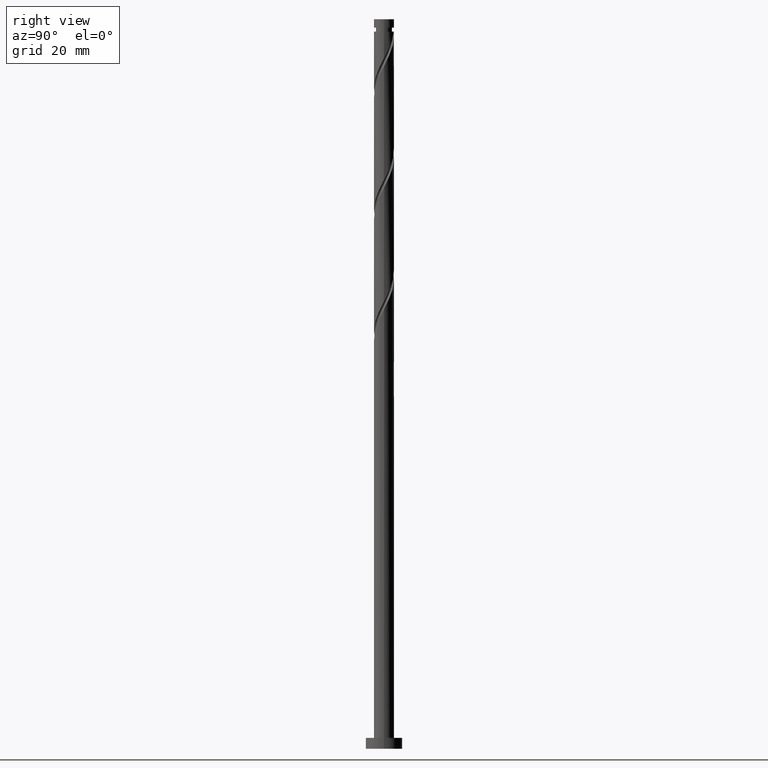
[diagram: clean part render]
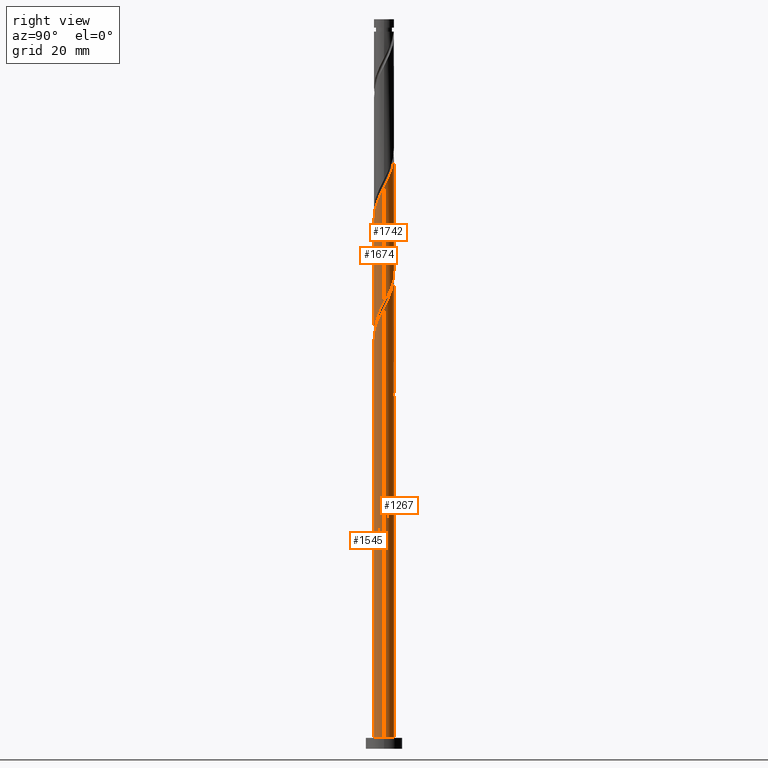
[diagram: same view with one multi-face feature highlighted, each face labeled with its STEP entity id]
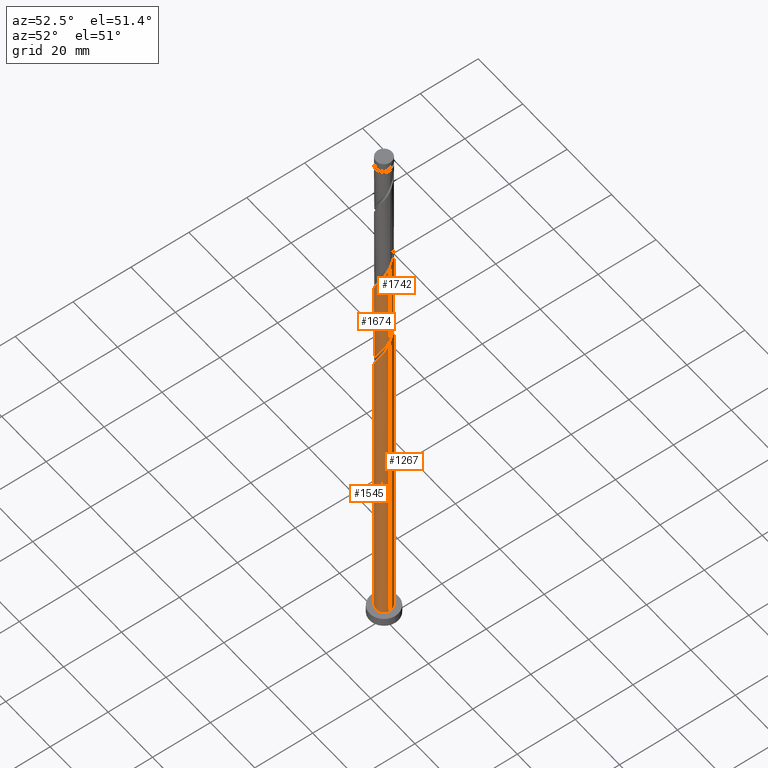
[diagram: same view with one multi-face feature highlighted, each face labeled with its STEP entity id]
A machine part, right view. The highlighted faces form ONE feature: a constant-radius fillet chain: 4 tangent blend faces with common blend radius 2.75 mm. The faces share edges in the B-rep.
A second angle (auxiliary view) of the same feature is appended — it is thin or edge-on in the first view.
Their STEP definitions:
[1] entity #1545 (Cylinder):
#2 = CIRCLE ( 'NONE', #536, 2.750000000000000000 ) ;
#64 = FACE_OUTER_BOUND ( 'NONE', #225, .T. ) ;
#65 = CARTESIAN_POINT ( 'NONE',  ( 1.226113560835244698, -2.461533167750525664, 114.6599680781436774 ) ) ;
#74 = CARTESIAN_POINT ( 'NONE',  ( -0.1689210922673435034, -2.744807035947559370, 111.8821903003659060 ) ) ;
#77 = EDGE_CURVE ( 'NONE', #700, #815, #1121, .T. ) ;
#84 = CARTESIAN_POINT ( 'NONE',  ( 2.092672286414963612, -1.820521580848698751, 116.7433014114770060 ) ) ;
#107 = EDGE_CURVE ( 'NONE', #941, #927, #835, .T. ) ;
#181 = EDGE_CURVE ( 'NONE', #815, #927, #2, .T. ) ;
#199 = DIRECTION ( 'NONE',  ( 0.000000000000000000, 0.000000000000000000, 1.000000000000000000 ) ) ;
#206 = CARTESIAN_POINT ( 'NONE',  ( -0.8735735816606137183, -2.607560008403386309, 110.4933014114770202 ) ) ;
#225 = EDGE_LOOP ( 'NONE', ( #619, #301, #715, #1317 ) ) ;
#301 = ORIENTED_EDGE ( 'NONE', *, *, #537, .F. ) ;
#328 = CYLINDRICAL_SURFACE ( 'NONE', #671, 2.750000000000000000 ) ;
#329 = CARTESIAN_POINT ( 'NONE',  ( 2.744807035947559370, -0.1689210922673450299, 120.2155236336992488 ) ) ;
#447 = CARTESIAN_POINT ( 'NONE',  ( -2.461533167750525664, -1.226113560835245364, 106.3266347448103630 ) ) ;
#459 = DIRECTION ( 'NONE',  ( -0.000000000000000000, -0.000000000000000000, -1.000000000000000000 ) ) ;
#460 = CARTESIAN_POINT ( 'NONE',  ( 0.5472430904086423853, -2.695000000000002949, 113.2710791892547917 ) ) ;
#471 = CARTESIAN_POINT ( 'NONE',  ( 2.292612075483180689, -1.518693475112314895, 117.4377458559214773 ) ) ;
#482 = DIRECTION ( 'NONE',  ( -0.000000000000000000, -0.000000000000000000, -1.000000000000000000 ) ) ;
#536 = AXIS2_PLACEMENT_3D ( 'NONE', #1659, #199, #1411 ) ;
#537 = EDGE_CURVE ( 'NONE', #700, #941, #930, .T. ) ;
#585 = CARTESIAN_POINT ( 'NONE',  ( -1.216865369375929928, -2.492551864551399543, 109.7988569670325916 ) ) ;
#588 = CARTESIAN_POINT ( 'NONE',  ( 2.750000000000000000, 3.367778697655221012E-16, 200.0000000000000000 ) ) ;
#605 = CARTESIAN_POINT ( 'NONE',  ( -1.820521580848698751, -2.092672286414963612, 108.4099680781436632 ) ) ;
#619 = ORIENTED_EDGE ( 'NONE', *, *, #107, .F. ) ;
#645 = CARTESIAN_POINT ( 'NONE',  ( -2.750000000000000000, 0.000000000000000000, 3.000000000000000000 ) ) ;
#668 = CARTESIAN_POINT ( 'NONE',  ( -2.750000000000003553, -2.557097139859011032E-15, 103.8741792007114100 ) ) ;
#671 = AXIS2_PLACEMENT_3D ( 'NONE', #866, #459, #1043 ) ;
#700 = VERTEX_POINT ( 'NONE', #668 ) ;
#715 = ORIENTED_EDGE ( 'NONE', *, *, #77, .T. ) ;
#723 = DIRECTION ( 'NONE',  ( -0.000000000000000000, -0.000000000000000000, -1.000000000000000000 ) ) ;
#731 = CARTESIAN_POINT ( 'NONE',  ( 0.9020465714066742136, -2.622954080360260232, 113.9655236336992488 ) ) ;
#743 = CARTESIAN_POINT ( 'NONE',  ( 2.492551864551398655, -1.216865369375930150, 118.1321903003658917 ) ) ;
#815 = VERTEX_POINT ( 'NONE', #645 ) ;
#835 = LINE ( 'NONE', #588, #1396 ) ;
#866 = CARTESIAN_POINT ( 'NONE',  ( 0.000000000000000000, 0.000000000000000000, 200.0000000000000000 ) ) ;
#877 = CARTESIAN_POINT ( 'NONE',  ( 0.1924396094106093635, -2.767045919639746554, 112.5766347448103346 ) ) ;
#921 = VECTOR ( 'NONE', #482, 1000.000000000000000 ) ;
#927 = VERTEX_POINT ( 'NONE', #1243 ) ;
#930 =( BOUNDED_CURVE ( )  B_SPLINE_CURVE ( 2, ( #1115, #1655, #1632, #1128, #447, #1643, #1665, #605, #1151, #585, #206, #1278, #74, #877, #460, #731, #65, #1269, #1542, #84, #471, #743, #1686, #1138, #329, #1160, #1433 ),
 .UNSPECIFIED., .F., .T. ) 
 B_SPLINE_CURVE_WITH_KNOTS ( ( 3, 2, 2, 2, 2, 2, 2, 2, 2, 2, 2, 2, 2, 3 ),
 ( 0.05453176698144622525, 0.06250000000000000000, 0.07291666666666662966, 0.08333333333333337034, 0.09375000000000000000, 0.1041666666666666297, 0.1145833333333333703, 0.1250000000000000000, 0.1354166666666666297, 0.1458333333333333703, 0.1562500000000000000, 0.1666666666666666297, 0.1770833333333333703, 0.1795317669814464057 ),
 .UNSPECIFIED. ) 
 CURVE ( )  GEOMETRIC_REPRESENTATION_ITEM ( )  RATIONAL_B_SPLINE_CURVE ( ( 0.9062941362546529378, 0.9031415850403570200, 0.9090909090909324863, 0.9013135103398509651, 0.9090909090909324863, 0.9013135103398509651, 0.9090909090909324863, 0.9013135103398509651, 0.9090909090909324863, 0.9013135103398509651, 0.9090909090909324863, 0.9013135103398509651, 0.9090909090909324863, 0.9013135103398509651, 0.9090909090909324863, 0.9013135103398509651, 0.9090909090909324863, 0.9013135103398509651, 0.9090909090909324863, 0.9013135103398509651, 0.9090909090909324863, 0.9013135103398509651, 0.9090909090909324863, 0.9013135103398509651, 0.9090909090909324863, 0.9072628343904260984, 0.9062941362546526047 ) ) 
 REPRESENTATION_ITEM ( '' )  );
#941 = VERTEX_POINT ( 'NONE', #972 ) ;
#972 = CARTESIAN_POINT ( 'NONE',  ( 2.750000000000002665, 7.925505755118572551E-16, 120.5408458673780672 ) ) ;
#1043 = DIRECTION ( 'NONE',  ( -1.000000000000000000, 0.000000000000000000, 0.000000000000000000 ) ) ;
#1115 = CARTESIAN_POINT ( 'NONE',  ( -2.750000000000003553, -2.557097139859010638E-15, 103.8741792007114242 ) ) ;
#1121 = LINE ( 'NONE', #1525, #921 ) ;
#1128 = CARTESIAN_POINT ( 'NONE',  ( -2.622954080360260232, -0.9020465714066743246, 105.6321903003658775 ) ) ;
#1138 = CARTESIAN_POINT ( 'NONE',  ( 2.722568152255373075, -0.5302817939452977303, 119.5210791892547775 ) ) ;
#1151 = CARTESIAN_POINT ( 'NONE',  ( -1.518693475112313784, -2.292612075483181577, 109.1044125225881487 ) ) ;
#1160 = CARTESIAN_POINT ( 'NONE',  ( 2.750000000000003109, -0.08454036705860136502, 120.3776821793499323 ) ) ;
#1243 = CARTESIAN_POINT ( 'NONE',  ( 2.750000000000000000, 3.367778697655221012E-16, 3.000000000000000000 ) ) ;
#1269 = CARTESIAN_POINT ( 'NONE',  ( 1.550180550263815071, -2.300112255140790651, 115.3544125225881487 ) ) ;
#1278 = CARTESIAN_POINT ( 'NONE',  ( -0.5302817939452965090, -2.722568152255373075, 111.1877458559214631 ) ) ;
#1317 = ORIENTED_EDGE ( 'NONE', *, *, #181, .T. ) ;
#1396 = VECTOR ( 'NONE', #723, 1000.000000000000000 ) ;
#1411 = DIRECTION ( 'NONE',  ( 1.000000000000000000, 0.000000000000000000, 0.000000000000000000 ) ) ;
#1433 = CARTESIAN_POINT ( 'NONE',  ( 2.750000000000002665, 7.925505755118572551E-16, 120.5408458673780672 ) ) ;
#1525 = CARTESIAN_POINT ( 'NONE',  ( -2.750000000000000000, 0.000000000000000000, 200.0000000000000000 ) ) ;
#1542 = CARTESIAN_POINT ( 'NONE',  ( 1.821426418339389786, -2.060316917994744479, 116.0488569670326058 ) ) ;
#1545 = ADVANCED_FACE ( 'NONE', ( #64 ), #328, .T. ) ;
#1632 = CARTESIAN_POINT ( 'NONE',  ( -2.695000000000002949, -0.5472430904086424963, 104.9377458559214773 ) ) ;
#1643 = CARTESIAN_POINT ( 'NONE',  ( -2.300112255140790207, -1.550180550263815960, 107.0210791892547633 ) ) ;
#1655 = CARTESIAN_POINT ( 'NONE',  ( -2.750000000000004441, -0.2763853991962810785, 104.4076055699006815 ) ) ;
#1659 = CARTESIAN_POINT ( 'NONE',  ( 0.000000000000000000, 0.000000000000000000, 3.000000000000000000 ) ) ;
#1665 = CARTESIAN_POINT ( 'NONE',  ( -2.060316917994743591, -1.821426418339390008, 107.7155236336992488 ) ) ;
#1686 = CARTESIAN_POINT ( 'NONE',  ( 2.607560008403386753, -0.8735735816606140514, 118.8266347448103488 ) ) ;
[2] entity #1267 (Cylinder):
#25 = AXIS2_PLACEMENT_3D ( 'NONE', #940, #101, #1475 ) ;
#47 = CARTESIAN_POINT ( 'NONE',  ( -2.722568152255373075, 0.5302817939452962870, 102.8544125225881345 ) ) ;
#63 = VECTOR ( 'NONE', #83, 1000.000000000000000 ) ;
#68 = CARTESIAN_POINT ( 'NONE',  ( -1.226113560835245586, 2.461533167750525664, 97.99330141147702022 ) ) ;
#77 = EDGE_CURVE ( 'NONE', #700, #815, #1121, .T. ) ;
#83 = DIRECTION ( 'NONE',  ( -0.000000000000000000, -0.000000000000000000, -1.000000000000000000 ) ) ;
#91 = CARTESIAN_POINT ( 'NONE',  ( 0.1924396094106105570, 2.767045919639743445, 97.29885696703260578 ) ) ;
#101 = DIRECTION ( 'NONE',  ( -0.000000000000000000, -0.000000000000000000, -1.000000000000000000 ) ) ;
#107 = EDGE_CURVE ( 'NONE', #941, #927, #835, .T. ) ;
#109 = CARTESIAN_POINT ( 'NONE',  ( 2.695000000000002949, 0.5472430904086422743, 121.6044125225881203 ) ) ;
#118 = CARTESIAN_POINT ( 'NONE',  ( -2.722568152255373075, 0.5302817939452962870, 136.1877458559214347 ) ) ;
#179 = VERTEX_POINT ( 'NONE', #1133 ) ;
#182 = CARTESIAN_POINT ( 'NONE',  ( -1.821426418339390452, 2.060316917994743591, 99.38219030036592017 ) ) ;
#213 = CARTESIAN_POINT ( 'NONE',  ( -2.750000000000000000, 0.2763853991962862966, 105.4678861419422731 ) ) ;
#242 = CARTESIAN_POINT ( 'NONE',  ( 0.5302817939452980633, 2.722568152255373075, 127.8544125225881061 ) ) ;
#247 = EDGE_CURVE ( 'NONE', #179, #700, #383, .T. ) ;
#254 = CARTESIAN_POINT ( 'NONE',  ( -0.1924396094106075872, 2.767045919639746554, 129.2433014114770344 ) ) ;
#310 = ORIENTED_EDGE ( 'NONE', *, *, #107, .T. ) ;
#315 = AXIS2_PLACEMENT_3D ( 'NONE', #1554, #1297, #899 ) ;
#318 = CARTESIAN_POINT ( 'NONE',  ( -1.820521580848695864, 2.092672286414962279, 101.4655236336992772 ) ) ;
#345 = CARTESIAN_POINT ( 'NONE',  ( -2.750000000000000000, -3.865553278675779500E-15, 106.0013125111315588 ) ) ;
#383 =( BOUNDED_CURVE ( )  B_SPLINE_CURVE ( 2, ( #734, #1273, #68, #599, #182, #712, #1155, #881, #702, #47, #1244, #451, #1001 ),
 .UNSPECIFIED., .F., .T. ) 
 B_SPLINE_CURVE_WITH_KNOTS ( ( 3, 2, 2, 2, 2, 2, 3 ),
 ( 0.000000000000000000, 0.01041666666666662966, 0.02083333333333337034, 0.03125000000000000000, 0.04166666666666662966, 0.05208333333333337034, 0.05453176698144622525 ),
 .UNSPECIFIED. ) 
 CURVE ( )  GEOMETRIC_REPRESENTATION_ITEM ( )  RATIONAL_B_SPLINE_CURVE ( ( 0.9090909090909324863, 0.9013135103398509651, 0.9090909090909324863, 0.9013135103398509651, 0.9090909090909324863, 0.9013135103398509651, 0.9090909090909324863, 0.9013135103398509651, 0.9090909090909324863, 0.9013135103398509651, 0.9090909090909324863, 0.9072628343904263204, 0.9062941362546529378 ) ) 
 REPRESENTATION_ITEM ( '' )  );
#440 =( BOUNDED_CURVE ( )  B_SPLINE_CURVE ( 2, ( #345, #213, #1560, #584, #1024, #1541, #604, #318, #1277, #1424, #1673, #751, #1150, #91, #497 ),
 .UNSPECIFIED., .F., .T. ) 
 B_SPLINE_CURVE_WITH_KNOTS ( ( 3, 2, 2, 2, 2, 2, 2, 3 ),
 ( 0.9295317669814463502, 0.9375000000000000000, 0.9479166666666666297, 0.9583333333333333703, 0.9687500000000000000, 0.9791666666666666297, 0.9895833333333333703, 1.000000000000000000 ),
 .UNSPECIFIED. ) 
 CURVE ( )  GEOMETRIC_REPRESENTATION_ITEM ( )  RATIONAL_B_SPLINE_CURVE ( ( 0.9062941362546472757, 0.9031415850403515799, 0.9090909090909271573, 0.9013135103398454140, 0.9090909090909271573, 0.9013135103398454140, 0.9090909090909271573, 0.9013135103398454140, 0.9090909090909271573, 0.9013135103398454140, 0.9090909090909271573, 0.9013135103398454140, 0.9090909090909271573, 0.9013135103398454140, 0.9090909090909271573 ) ) 
 REPRESENTATION_ITEM ( '' )  );
#449 = ORIENTED_EDGE ( 'NONE', *, *, #1458, .F. ) ;
#451 = CARTESIAN_POINT ( 'NONE',  ( -2.750000000000003109, 0.08454036705860486223, 103.7110155126832325 ) ) ;
#453 = VERTEX_POINT ( 'NONE', #1232 ) ;
#482 = DIRECTION ( 'NONE',  ( -0.000000000000000000, -0.000000000000000000, -1.000000000000000000 ) ) ;
#486 = AXIS2_PLACEMENT_3D ( 'NONE', #567, #1223, #1373 ) ;
#497 = CARTESIAN_POINT ( 'NONE',  ( 0.5472430904086429404, 2.694999999999998952, 96.60441252258813449 ) ) ;
#514 = CARTESIAN_POINT ( 'NONE',  ( 0.5472430904086429404, 2.694999999999998952, 96.60441252258813449 ) ) ;
#515 = EDGE_CURVE ( 'NONE', #927, #815, #735, .T. ) ;
#520 = CYLINDRICAL_SURFACE ( 'NONE', #25, 2.750000000000000000 ) ;
#567 = CARTESIAN_POINT ( 'NONE',  ( 0.000000000000000000, 0.000000000000000000, 3.000000000000000000 ) ) ;
#584 = CARTESIAN_POINT ( 'NONE',  ( -2.622954080360256679, 0.9020465714066745466, 104.2433014114770344 ) ) ;
#588 = CARTESIAN_POINT ( 'NONE',  ( 2.750000000000000000, 3.367778697655221012E-16, 200.0000000000000000 ) ) ;
#599 = CARTESIAN_POINT ( 'NONE',  ( -1.550180550263816848, 2.300112255140789763, 98.68774585592146309 ) ) ;
#604 = CARTESIAN_POINT ( 'NONE',  ( -2.060316917994740482, 1.821426418339388231, 102.1599680781436916 ) ) ;
#637 = CARTESIAN_POINT ( 'NONE',  ( 2.622954080360260232, 0.9020465714066742136, 122.2988569670325631 ) ) ;
#638 = ORIENTED_EDGE ( 'NONE', *, *, #1190, .F. ) ;
#643 = CARTESIAN_POINT ( 'NONE',  ( 1.518693475112314006, 2.292612075483181133, 125.7710791892548201 ) ) ;
#645 = CARTESIAN_POINT ( 'NONE',  ( -2.750000000000000000, 0.000000000000000000, 3.000000000000000000 ) ) ;
#648 = CARTESIAN_POINT ( 'NONE',  ( -0.9020465714066747687, 2.622954080360259788, 130.6321903003659202 ) ) ;
#658 = CARTESIAN_POINT ( 'NONE',  ( -2.092672286414964056, 1.820521580848698528, 133.4099680781436916 ) ) ;
#668 = CARTESIAN_POINT ( 'NONE',  ( -2.750000000000003553, -2.557097139859011032E-15, 103.8741792007114100 ) ) ;
#700 = VERTEX_POINT ( 'NONE', #668 ) ;
#702 = CARTESIAN_POINT ( 'NONE',  ( -2.607560008403386753, 0.8735735816606131632, 102.1599680781437058 ) ) ;
#712 = CARTESIAN_POINT ( 'NONE',  ( -2.092672286414964056, 1.820521580848698528, 100.0766347448103630 ) ) ;
#723 = DIRECTION ( 'NONE',  ( -0.000000000000000000, -0.000000000000000000, -1.000000000000000000 ) ) ;
#734 = CARTESIAN_POINT ( 'NONE',  ( -0.5472430904086420522, 2.695000000000002949, 96.60441252258813449 ) ) ;
#735 = CIRCLE ( 'NONE', #486, 2.750000000000000000 ) ;
#751 = CARTESIAN_POINT ( 'NONE',  ( -0.5302817939452950657, 2.722568152255369522, 98.68774585592149151 ) ) ;
#766 = CIRCLE ( 'NONE', #315, 2.750000000000000000 ) ;
#789 = CARTESIAN_POINT ( 'NONE',  ( -1.821426418339390452, 2.060316917994743591, 132.7155236336992630 ) ) ;
#815 = VERTEX_POINT ( 'NONE', #645 ) ;
#833 = ORIENTED_EDGE ( 'NONE', *, *, #77, .F. ) ;
#835 = LINE ( 'NONE', #588, #1396 ) ;
#872 = ORIENTED_EDGE ( 'NONE', *, *, #247, .F. ) ;
#881 = CARTESIAN_POINT ( 'NONE',  ( -2.492551864551399543, 1.216865369375929040, 101.4655236336992203 ) ) ;
#899 = DIRECTION ( 'NONE',  ( 0.000000000000000000, 1.000000000000000000, -4.037174635000569123E-14 ) ) ;
#900 = ORIENTED_EDGE ( 'NONE', *, *, #1537, .F. ) ;
#909 = ORIENTED_EDGE ( 'NONE', *, *, #515, .T. ) ;
#918 = CARTESIAN_POINT ( 'NONE',  ( 2.750000000000003109, 0.2763853991962846313, 121.0742722365673387 ) ) ;
#921 = VECTOR ( 'NONE', #482, 1000.000000000000000 ) ;
#926 = CARTESIAN_POINT ( 'NONE',  ( -2.607560008403386753, 0.8735735816606131632, 135.4933014114770060 ) ) ;
#927 = VERTEX_POINT ( 'NONE', #1243 ) ;
#940 = CARTESIAN_POINT ( 'NONE',  ( 0.000000000000000000, 0.000000000000000000, 200.0000000000000000 ) ) ;
#941 = VERTEX_POINT ( 'NONE', #972 ) ;
#949 = CARTESIAN_POINT ( 'NONE',  ( -2.750000000000003109, 0.08454036705860050460, 137.0443488460165611 ) ) ;
#972 = CARTESIAN_POINT ( 'NONE',  ( 2.750000000000002665, 7.925505755118572551E-16, 120.5408458673780672 ) ) ;
#1001 = CARTESIAN_POINT ( 'NONE',  ( -2.750000000000003553, -2.557097139859010638E-15, 103.8741792007114242 ) ) ;
#1016 = LINE ( 'NONE', #1295, #63 ) ;
#1024 = CARTESIAN_POINT ( 'NONE',  ( -2.461533167750520779, 1.226113560835244920, 103.5488569670325916 ) ) ;
#1044 = EDGE_CURVE ( 'NONE', #179, #1131, #766, .T. ) ;
#1055 = CARTESIAN_POINT ( 'NONE',  ( 2.300112255140790651, 1.550180550263815071, 123.6877458559214773 ) ) ;
#1062 = CARTESIAN_POINT ( 'NONE',  ( 1.820521580848699639, 2.092672286414961835, 125.0766347448103488 ) ) ;
#1072 = CARTESIAN_POINT ( 'NONE',  ( -2.750000000000003553, -2.557097139859011032E-15, 137.2075125340447244 ) ) ;
#1078 = CARTESIAN_POINT ( 'NONE',  ( -2.750000000000000000, -3.865553278675779500E-15, 106.0013125111315588 ) ) ;
#1121 = LINE ( 'NONE', #1525, #921 ) ;
#1131 = VERTEX_POINT ( 'NONE', #514 ) ;
#1133 = CARTESIAN_POINT ( 'NONE',  ( -0.5472430904086420522, 2.695000000000002949, 96.60441252258813449 ) ) ;
#1150 = CARTESIAN_POINT ( 'NONE',  ( -0.1689210922673422266, 2.744807035947555818, 97.99330141147700601 ) ) ;
#1155 = CARTESIAN_POINT ( 'NONE',  ( -2.292612075483181577, 1.518693475112313784, 100.7710791892548059 ) ) ;
#1189 = CARTESIAN_POINT ( 'NONE',  ( -1.226113560835245586, 2.461533167750525664, 131.3266347448103488 ) ) ;
#1190 = EDGE_CURVE ( 'NONE', #941, #453, #1472, .T. ) ;
#1195 = CARTESIAN_POINT ( 'NONE',  ( 2.060316917994744923, 1.821426418339388897, 124.3821903003659202 ) ) ;
#1199 = CARTESIAN_POINT ( 'NONE',  ( -2.744807035947559370, 0.1689210922673433646, 136.8821903003658917 ) ) ;
#1205 = CARTESIAN_POINT ( 'NONE',  ( 1.216865369375930372, 2.492551864551399099, 126.4655236336992346 ) ) ;
#1223 = DIRECTION ( 'NONE',  ( 0.000000000000000000, 0.000000000000000000, 1.000000000000000000 ) ) ;
#1232 = CARTESIAN_POINT ( 'NONE',  ( -2.750000000000003553, -2.557097139859011032E-15, 137.2075125340447244 ) ) ;
#1243 = CARTESIAN_POINT ( 'NONE',  ( 2.750000000000000000, 3.367778697655221012E-16, 3.000000000000000000 ) ) ;
#1244 = CARTESIAN_POINT ( 'NONE',  ( -2.744807035947559370, 0.1689210922673433646, 103.5488569670325774 ) ) ;
#1267 = ADVANCED_FACE ( 'NONE', ( #1307 ), #520, .T. ) ;
#1273 = CARTESIAN_POINT ( 'NONE',  ( -0.9020465714066747687, 2.622954080360259788, 97.29885696703257736 ) ) ;
#1277 = CARTESIAN_POINT ( 'NONE',  ( -1.518693475112311564, 2.292612075483178469, 100.7710791892547917 ) ) ;
#1295 = CARTESIAN_POINT ( 'NONE',  ( -2.750000000000000000, 0.000000000000000000, 200.0000000000000000 ) ) ;
#1297 = DIRECTION ( 'NONE',  ( -1.120541058552573065E-29, -3.784851220313033947E-14, -1.000000000000000000 ) ) ;
#1307 = FACE_OUTER_BOUND ( 'NONE', #1584, .T. ) ;
#1309 = VERTEX_POINT ( 'NONE', #1078 ) ;
#1316 = CARTESIAN_POINT ( 'NONE',  ( 2.750000000000002665, 7.925505755118572551E-16, 120.5408458673780672 ) ) ;
#1324 = CARTESIAN_POINT ( 'NONE',  ( -2.492551864551399543, 1.216865369375929040, 134.7988569670325774 ) ) ;
#1331 = CARTESIAN_POINT ( 'NONE',  ( 0.8735735816606140514, 2.607560008403386309, 127.1599680781436916 ) ) ;
#1373 = DIRECTION ( 'NONE',  ( 1.000000000000000000, 0.000000000000000000, 0.000000000000000000 ) ) ;
#1396 = VECTOR ( 'NONE', #723, 1000.000000000000000 ) ;
#1424 = CARTESIAN_POINT ( 'NONE',  ( -1.216865369375927486, 2.492551864551397323, 100.0766347448104057 ) ) ;
#1458 = EDGE_CURVE ( 'NONE', #453, #1309, #1016, .T. ) ;
#1467 = CARTESIAN_POINT ( 'NONE',  ( 0.1689210922673451132, 2.744807035947559370, 128.5488569670325774 ) ) ;
#1472 =( BOUNDED_CURVE ( )  B_SPLINE_CURVE ( 2, ( #1316, #918, #109, #637, #1604, #1055, #1195, #1062, #643, #1205, #1331, #242, #1467, #254, #1733, #648, #1189, #1597, #789, #658, #1616, #1324, #926, #118, #1199, #949, #1072 ),
 .UNSPECIFIED., .F., .T. ) 
 B_SPLINE_CURVE_WITH_KNOTS ( ( 3, 2, 2, 2, 2, 2, 2, 2, 2, 2, 2, 2, 2, 3 ),
 ( 0.1795317669814463779, 0.1875000000000000000, 0.1979166666666666297, 0.2083333333333333703, 0.2187500000000000000, 0.2291666666666666297, 0.2395833333333333703, 0.2500000000000000000, 0.2604166666666666297, 0.2708333333333333703, 0.2812500000000000000, 0.2916666666666666297, 0.3020833333333333703, 0.3045317669814463502 ),
 .UNSPECIFIED. ) 
 CURVE ( )  GEOMETRIC_REPRESENTATION_ITEM ( )  RATIONAL_B_SPLINE_CURVE ( ( 0.9062941362546526047, 0.9031415850403571310, 0.9090909090909324863, 0.9013135103398509651, 0.9090909090909324863, 0.9013135103398509651, 0.9090909090909324863, 0.9013135103398509651, 0.9090909090909324863, 0.9013135103398509651, 0.9090909090909324863, 0.9013135103398509651, 0.9090909090909324863, 0.9013135103398509651, 0.9090909090909324863, 0.9013135103398509651, 0.9090909090909324863, 0.9013135103398509651, 0.9090909090909324863, 0.9013135103398509651, 0.9090909090909324863, 0.9013135103398509651, 0.9090909090909324863, 0.9013135103398509651, 0.9090909090909324863, 0.9072628343904262094, 0.9062941362546528268 ) ) 
 REPRESENTATION_ITEM ( '' )  );
#1475 = DIRECTION ( 'NONE',  ( -1.000000000000000000, 0.000000000000000000, 0.000000000000000000 ) ) ;
#1514 = ORIENTED_EDGE ( 'NONE', *, *, #1044, .T. ) ;
#1525 = CARTESIAN_POINT ( 'NONE',  ( -2.750000000000000000, 0.000000000000000000, 200.0000000000000000 ) ) ;
#1537 = EDGE_CURVE ( 'NONE', #1309, #1131, #440, .T. ) ;
#1541 = CARTESIAN_POINT ( 'NONE',  ( -2.300112255140786655, 1.550180550263815737, 102.8544125225881629 ) ) ;
#1554 = CARTESIAN_POINT ( 'NONE',  ( 0.000000000000000000, 0.000000000000000000, 96.60441252258824818 ) ) ;
#1560 = CARTESIAN_POINT ( 'NONE',  ( -2.694999999999998952, 0.5472430904086424963, 104.9377458559214915 ) ) ;
#1584 = EDGE_LOOP ( 'NONE', ( #638, #310, #909, #833, #872, #1514, #900, #449 ) ) ;
#1597 = CARTESIAN_POINT ( 'NONE',  ( -1.550180550263816848, 2.300112255140789763, 132.0210791892548059 ) ) ;
#1604 = CARTESIAN_POINT ( 'NONE',  ( 2.461533167750525664, 1.226113560835244698, 122.9933014114770344 ) ) ;
#1616 = CARTESIAN_POINT ( 'NONE',  ( -2.292612075483181577, 1.518693475112313784, 134.1044125225881487 ) ) ;
#1673 = CARTESIAN_POINT ( 'NONE',  ( -0.8735735816606108317, 2.607560008403383645, 99.38219030036590596 ) ) ;
#1733 = CARTESIAN_POINT ( 'NONE',  ( -0.5472430904086421632, 2.695000000000002949, 129.9377458559214915 ) ) ;
[3] entity #1674 (Cylinder):
#8 = CARTESIAN_POINT ( 'NONE',  ( 0.1689210922673410054, -2.744807035947555818, 114.6599680781436916 ) ) ;
#13 = CARTESIAN_POINT ( 'NONE',  ( -2.622954080360260232, -0.9020465714066743246, 138.9655236336992346 ) ) ;
#18 = CARTESIAN_POINT ( 'NONE',  ( -2.722568152255370855, -0.5302817939452945106, 107.0210791892548059 ) ) ;
#22 = CARTESIAN_POINT ( 'NONE',  ( -2.461533167750525664, -1.226113560835245364, 139.6599680781437485 ) ) ;
#41 = CARTESIAN_POINT ( 'NONE',  ( -0.1924396094106114175, -2.767045919639743445, 113.9655236336992914 ) ) ;
#63 = VECTOR ( 'NONE', #83, 1000.000000000000000 ) ;
#79 = CARTESIAN_POINT ( 'NONE',  ( 2.750000000000002665, 7.925505755118572551E-16, 153.8741792007113816 ) ) ;
#83 = DIRECTION ( 'NONE',  ( -0.000000000000000000, -0.000000000000000000, -1.000000000000000000 ) ) ;
#86 = CARTESIAN_POINT ( 'NONE',  ( 1.226113560835244698, -2.461533167750525664, 147.9933014114770060 ) ) ;
#94 = CARTESIAN_POINT ( 'NONE',  ( 2.722568152255373075, -0.5302817939452977303, 152.8544125225881203 ) ) ;
#142 = DIRECTION ( 'NONE',  ( -1.000000000000000000, 0.000000000000000000, 0.000000000000000000 ) ) ;
#148 = ORIENTED_EDGE ( 'NONE', *, *, #608, .F. ) ;
#149 = CARTESIAN_POINT ( 'NONE',  ( -2.695000000000002949, -0.5472430904086424963, 138.2710791892547775 ) ) ;
#162 = CARTESIAN_POINT ( 'NONE',  ( 0.5302817939452934004, -2.722568152255370855, 115.3544125225881487 ) ) ;
#233 = CARTESIAN_POINT ( 'NONE',  ( 0.5472430904086423853, -2.695000000000002949, 146.6044125225881487 ) ) ;
#243 = ORIENTED_EDGE ( 'NONE', *, *, #1010, .F. ) ;
#262 =( BOUNDED_CURVE ( )  B_SPLINE_CURVE ( 2, ( #960, #280, #149, #13, #22, #562, #430, #980, #1027, #1289, #1410, #1428, #880, #1715, #233, #1418, #86, #331, #1018, #339, #1154, #1047, #464, #94, #907, #500, #1688 ),
 .UNSPECIFIED., .F., .T. ) 
 B_SPLINE_CURVE_WITH_KNOTS ( ( 3, 2, 2, 2, 2, 2, 2, 2, 2, 2, 2, 2, 2, 3 ),
 ( 0.3045317669814463502, 0.3125000000000000000, 0.3229166666666666297, 0.3333333333333333703, 0.3437500000000000000, 0.3541666666666666297, 0.3645833333333333703, 0.3750000000000000000, 0.3854166666666666297, 0.3958333333333333703, 0.4062500000000000000, 0.4166666666666666297, 0.4270833333333333703, 0.4295317669814465167 ),
 .UNSPECIFIED. ) 
 CURVE ( )  GEOMETRIC_REPRESENTATION_ITEM ( )  RATIONAL_B_SPLINE_CURVE ( ( 0.9062941362546528268, 0.9031415850403572421, 0.9090909090909324863, 0.9013135103398509651, 0.9090909090909324863, 0.9013135103398509651, 0.9090909090909324863, 0.9013135103398509651, 0.9090909090909324863, 0.9013135103398509651, 0.9090909090909324863, 0.9013135103398509651, 0.9090909090909324863, 0.9013135103398509651, 0.9090909090909324863, 0.9013135103398509651, 0.9090909090909324863, 0.9013135103398509651, 0.9090909090909324863, 0.9013135103398509651, 0.9090909090909324863, 0.9013135103398509651, 0.9090909090909324863, 0.9013135103398509651, 0.9090909090909324863, 0.9072628343904260984, 0.9062941362546527158 ) ) 
 REPRESENTATION_ITEM ( '' )  );
#280 = CARTESIAN_POINT ( 'NONE',  ( -2.750000000000003109, -0.2763853991962853529, 137.7409389032339959 ) ) ;
#287 = CARTESIAN_POINT ( 'NONE',  ( -2.750000000000000888, -0.08454036705859917233, 106.1644761991596937 ) ) ;
#304 = CYLINDRICAL_SURFACE ( 'NONE', #788, 2.750000000000000000 ) ;
#306 = CARTESIAN_POINT ( 'NONE',  ( 1.518693475112310010, -2.292612075483179357, 117.4377458559214773 ) ) ;
#324 = VERTEX_POINT ( 'NONE', #79 ) ;
#331 = CARTESIAN_POINT ( 'NONE',  ( 1.550180550263815071, -2.300112255140790651, 148.6877458559215199 ) ) ;
#339 = CARTESIAN_POINT ( 'NONE',  ( 2.092672286414963612, -1.820521580848698751, 150.0766347448103204 ) ) ;
#386 =( BOUNDED_CURVE ( )  B_SPLINE_CURVE ( 2, ( #549, #1664, #957, #1093, #811, #1249, #1222, #566, #306, #1622, #829, #162, #8, #41, #1490, #408, #1511, #446, #1231, #1386, #995, #1642, #966, #18, #1501, #287, #708 ),
 .UNSPECIFIED., .F., .T. ) 
 B_SPLINE_CURVE_WITH_KNOTS ( ( 3, 2, 2, 2, 2, 2, 2, 2, 2, 2, 2, 2, 2, 3 ),
 ( 0.8045317669814462391, 0.8125000000000000000, 0.8229166666666666297, 0.8333333333333333703, 0.8437500000000000000, 0.8541666666666666297, 0.8645833333333333703, 0.8750000000000000000, 0.8854166666666666297, 0.8958333333333333703, 0.9062500000000000000, 0.9166666666666666297, 0.9270833333333333703, 0.9295317669814463502 ),
 .UNSPECIFIED. ) 
 CURVE ( )  GEOMETRIC_REPRESENTATION_ITEM ( )  RATIONAL_B_SPLINE_CURVE ( ( 0.9062941362546474977, 0.9031415850403515799, 0.9090909090909271573, 0.9013135103398454140, 0.9090909090909271573, 0.9013135103398454140, 0.9090909090909271573, 0.9013135103398454140, 0.9090909090909271573, 0.9013135103398454140, 0.9090909090909271573, 0.9013135103398454140, 0.9090909090909271573, 0.9013135103398454140, 0.9090909090909271573, 0.9013135103398454140, 0.9090909090909271573, 0.9013135103398454140, 0.9090909090909271573, 0.9013135103398454140, 0.9090909090909271573, 0.9013135103398454140, 0.9090909090909271573, 0.9013135103398454140, 0.9090909090909271573, 0.9072628343904207693, 0.9062941362546472757 ) ) 
 REPRESENTATION_ITEM ( '' )  );
#408 = CARTESIAN_POINT ( 'NONE',  ( -0.9020465714066752128, -2.622954080360256679, 112.5766347448103915 ) ) ;
#430 = CARTESIAN_POINT ( 'NONE',  ( -2.060316917994743591, -1.821426418339390008, 141.0488569670326058 ) ) ;
#446 = CARTESIAN_POINT ( 'NONE',  ( -1.550180550263815737, -2.300112255140786655, 111.1877458559214915 ) ) ;
#453 = VERTEX_POINT ( 'NONE', #1232 ) ;
#464 = CARTESIAN_POINT ( 'NONE',  ( 2.607560008403386753, -0.8735735816606140514, 152.1599680781436916 ) ) ;
#488 = DIRECTION ( 'NONE',  ( -0.000000000000000000, -0.000000000000000000, -1.000000000000000000 ) ) ;
#500 = CARTESIAN_POINT ( 'NONE',  ( 2.750000000000003109, -0.08454036705859657719, 153.7110155126832467 ) ) ;
#549 = CARTESIAN_POINT ( 'NONE',  ( 2.750000000000000000, 3.162725409825637737E-15, 122.6679791777982160 ) ) ;
#555 = FACE_OUTER_BOUND ( 'NONE', #660, .T. ) ;
#562 = CARTESIAN_POINT ( 'NONE',  ( -2.300112255140790207, -1.550180550263815960, 140.3544125225880919 ) ) ;
#566 = CARTESIAN_POINT ( 'NONE',  ( 1.820521580848694754, -2.092672286414962723, 118.1321903003659344 ) ) ;
#608 = EDGE_CURVE ( 'NONE', #324, #989, #1168, .T. ) ;
#660 = EDGE_LOOP ( 'NONE', ( #148, #243, #1135, #1657 ) ) ;
#708 = CARTESIAN_POINT ( 'NONE',  ( -2.750000000000000000, -3.865553278675779500E-15, 106.0013125111315588 ) ) ;
#788 = AXIS2_PLACEMENT_3D ( 'NONE', #974, #1237, #142 ) ;
#811 = CARTESIAN_POINT ( 'NONE',  ( 2.461533167750520334, -1.226113560835246030, 120.2155236336992488 ) ) ;
#829 = CARTESIAN_POINT ( 'NONE',  ( 0.8735735816606100546, -2.607560008403383645, 116.0488569670325774 ) ) ;
#880 = CARTESIAN_POINT ( 'NONE',  ( -0.1689210922673435034, -2.744807035947559370, 145.2155236336992061 ) ) ;
#907 = CARTESIAN_POINT ( 'NONE',  ( 2.744807035947559370, -0.1689210922673450299, 153.5488569670325774 ) ) ;
#957 = CARTESIAN_POINT ( 'NONE',  ( 2.694999999999998952, -0.5472430904086427184, 121.6044125225881345 ) ) ;
#960 = CARTESIAN_POINT ( 'NONE',  ( -2.750000000000003553, -2.557097139859011032E-15, 137.2075125340447244 ) ) ;
#966 = CARTESIAN_POINT ( 'NONE',  ( -2.607560008403383645, -0.8735735816606104986, 107.7155236336992346 ) ) ;
#974 = CARTESIAN_POINT ( 'NONE',  ( 0.000000000000000000, 0.000000000000000000, 200.0000000000000000 ) ) ;
#980 = CARTESIAN_POINT ( 'NONE',  ( -1.820521580848698751, -2.092672286414963612, 141.7433014114770344 ) ) ;
#989 = VERTEX_POINT ( 'NONE', #1253 ) ;
#995 = CARTESIAN_POINT ( 'NONE',  ( -2.292612075483178469, -1.518693475112311342, 109.1044125225881487 ) ) ;
#1010 = EDGE_CURVE ( 'NONE', #453, #324, #262, .T. ) ;
#1016 = LINE ( 'NONE', #1295, #63 ) ;
#1018 = CARTESIAN_POINT ( 'NONE',  ( 1.821426418339389786, -2.060316917994744479, 149.3821903003659486 ) ) ;
#1027 = CARTESIAN_POINT ( 'NONE',  ( -1.518693475112313784, -2.292612075483181577, 142.4377458559214915 ) ) ;
#1047 = CARTESIAN_POINT ( 'NONE',  ( 2.492551864551398655, -1.216865369375930150, 151.4655236336992346 ) ) ;
#1078 = CARTESIAN_POINT ( 'NONE',  ( -2.750000000000000000, -3.865553278675779500E-15, 106.0013125111315588 ) ) ;
#1093 = CARTESIAN_POINT ( 'NONE',  ( 2.622954080360256235, -0.9020465714066764340, 120.9099680781437058 ) ) ;
#1135 = ORIENTED_EDGE ( 'NONE', *, *, #1458, .T. ) ;
#1154 = CARTESIAN_POINT ( 'NONE',  ( 2.292612075483180689, -1.518693475112314895, 150.7710791892548059 ) ) ;
#1168 = LINE ( 'NONE', #1704, #1705 ) ;
#1222 = CARTESIAN_POINT ( 'NONE',  ( 2.060316917994739594, -1.821426418339389119, 118.8266347448103488 ) ) ;
#1231 = CARTESIAN_POINT ( 'NONE',  ( -1.821426418339388675, -2.060316917994740038, 110.4933014114770060 ) ) ;
#1232 = CARTESIAN_POINT ( 'NONE',  ( -2.750000000000003553, -2.557097139859011032E-15, 137.2075125340447244 ) ) ;
#1237 = DIRECTION ( 'NONE',  ( -0.000000000000000000, -0.000000000000000000, -1.000000000000000000 ) ) ;
#1249 = CARTESIAN_POINT ( 'NONE',  ( 2.300112255140786210, -1.550180550263816182, 119.5210791892548059 ) ) ;
#1253 = CARTESIAN_POINT ( 'NONE',  ( 2.750000000000000000, 3.162725409825637737E-15, 122.6679791777982160 ) ) ;
#1289 = CARTESIAN_POINT ( 'NONE',  ( -1.216865369375929928, -2.492551864551399543, 143.1321903003658917 ) ) ;
#1295 = CARTESIAN_POINT ( 'NONE',  ( -2.750000000000000000, 0.000000000000000000, 200.0000000000000000 ) ) ;
#1309 = VERTEX_POINT ( 'NONE', #1078 ) ;
#1386 = CARTESIAN_POINT ( 'NONE',  ( -2.092672286414962723, -1.820521580848695198, 109.7988569670326200 ) ) ;
#1410 = CARTESIAN_POINT ( 'NONE',  ( -0.8735735816606137183, -2.607560008403386309, 143.8266347448103772 ) ) ;
#1418 = CARTESIAN_POINT ( 'NONE',  ( 0.9020465714066742136, -2.622954080360260232, 147.2988569670325489 ) ) ;
#1426 = EDGE_CURVE ( 'NONE', #989, #1309, #386, .T. ) ;
#1428 = CARTESIAN_POINT ( 'NONE',  ( -0.5302817939452965090, -2.722568152255373075, 144.5210791892547775 ) ) ;
#1458 = EDGE_CURVE ( 'NONE', #453, #1309, #1016, .T. ) ;
#1490 = CARTESIAN_POINT ( 'NONE',  ( -0.5472430904086426073, -2.694999999999998952, 113.2710791892547775 ) ) ;
#1501 = CARTESIAN_POINT ( 'NONE',  ( -2.744807035947555818, -0.1689210922673418935, 106.3266347448103772 ) ) ;
#1511 = CARTESIAN_POINT ( 'NONE',  ( -1.226113560835244920, -2.461533167750520779, 111.8821903003658917 ) ) ;
#1622 = CARTESIAN_POINT ( 'NONE',  ( 1.216865369375926598, -2.492551864551397323, 116.7433014114770344 ) ) ;
#1642 = CARTESIAN_POINT ( 'NONE',  ( -2.492551864551397323, -1.216865369375926598, 108.4099680781437058 ) ) ;
#1657 = ORIENTED_EDGE ( 'NONE', *, *, #1426, .F. ) ;
#1664 = CARTESIAN_POINT ( 'NONE',  ( 2.750000000000000444, -0.2763853991962827439, 122.1345528086089303 ) ) ;
#1674 = ADVANCED_FACE ( 'NONE', ( #555 ), #304, .T. ) ;
#1688 = CARTESIAN_POINT ( 'NONE',  ( 2.750000000000002665, 7.925505755118572551E-16, 153.8741792007113816 ) ) ;
#1704 = CARTESIAN_POINT ( 'NONE',  ( 2.750000000000000000, 3.367778697655221012E-16, 200.0000000000000000 ) ) ;
#1705 = VECTOR ( 'NONE', #488, 1000.000000000000000 ) ;
#1715 = CARTESIAN_POINT ( 'NONE',  ( 0.1924396094106093635, -2.767045919639746554, 145.9099680781436916 ) ) ;
[4] entity #1742 (Cylinder):
#5 = CARTESIAN_POINT ( 'NONE',  ( -0.5302817939452950657, 2.722568152255369522, 132.0210791892548059 ) ) ;
#30 = CARTESIAN_POINT ( 'NONE',  ( 1.820521580848699639, 2.092672286414961835, 158.4099680781436632 ) ) ;
#46 = CARTESIAN_POINT ( 'NONE',  ( 2.722568152255370855, 0.5302817939452934004, 123.6877458559215057 ) ) ;
#73 = CARTESIAN_POINT ( 'NONE',  ( -2.750000000000003553, 2.190729420990322282E-15, 170.5408458673780956 ) ) ;
#79 = CARTESIAN_POINT ( 'NONE',  ( 2.750000000000002665, 7.925505755118572551E-16, 153.8741792007113816 ) ) ;
#111 = CARTESIAN_POINT ( 'NONE',  ( -0.1689210922673422266, 2.744807035947555818, 131.3266347448103488 ) ) ;
#155 = CARTESIAN_POINT ( 'NONE',  ( 2.300112255140790651, 1.550180550263815071, 157.0210791892548627 ) ) ;
#170 = DIRECTION ( 'NONE',  ( -0.000000000000000000, -0.000000000000000000, -1.000000000000000000 ) ) ;
#175 = CARTESIAN_POINT ( 'NONE',  ( 2.461533167750525664, 1.226113560835244698, 156.3266347448103772 ) ) ;
#184 = CARTESIAN_POINT ( 'NONE',  ( 0.000000000000000000, 0.000000000000000000, 200.0000000000000000 ) ) ;
#205 = CARTESIAN_POINT ( 'NONE',  ( -2.292612075483181577, 1.518693475112313784, 167.4377458559214915 ) ) ;
#209 = CARTESIAN_POINT ( 'NONE',  ( -2.750000000000000000, 0.000000000000000000, 200.0000000000000000 ) ) ;
#222 = CARTESIAN_POINT ( 'NONE',  ( -1.550180550263816848, 2.300112255140789763, 165.3544125225881203 ) ) ;
#257 = CARTESIAN_POINT ( 'NONE',  ( -2.622954080360256679, 0.9020465714066745466, 137.5766347448103772 ) ) ;
#264 = CARTESIAN_POINT ( 'NONE',  ( -1.820521580848695864, 2.092672286414962279, 134.7988569670326058 ) ) ;
#292 = CARTESIAN_POINT ( 'NONE',  ( 0.5472430904086428294, 2.694999999999998952, 129.9377458559214915 ) ) ;
#298 = CARTESIAN_POINT ( 'NONE',  ( 0.8735735816606140514, 2.607560008403386309, 160.4933014114770344 ) ) ;
#302 = CARTESIAN_POINT ( 'NONE',  ( 2.292612075483179357, 1.518693475112310454, 125.7710791892547917 ) ) ;
#308 = EDGE_CURVE ( 'NONE', #1634, #1069, #1420, .T. ) ;
#324 = VERTEX_POINT ( 'NONE', #79 ) ;
#337 = CARTESIAN_POINT ( 'NONE',  ( -2.750000000000003553, 2.190729420990322282E-15, 170.5408458673780956 ) ) ;
#354 = CARTESIAN_POINT ( 'NONE',  ( -2.092672286414964056, 1.820521580848698528, 166.7433014114770060 ) ) ;
#388 = CARTESIAN_POINT ( 'NONE',  ( -2.750000000000000000, 0.2763853991962862966, 138.8012194752756159 ) ) ;
#395 = CARTESIAN_POINT ( 'NONE',  ( -2.461533167750520779, 1.226113560835244920, 136.8821903003659202 ) ) ;
#418 = CARTESIAN_POINT ( 'NONE',  ( 2.750000000000000000, 3.162725409825637737E-15, 122.6679791777982160 ) ) ;
#426 = CARTESIAN_POINT ( 'NONE',  ( 1.518693475112314006, 2.292612075483181133, 159.1044125225881487 ) ) ;
#436 = CARTESIAN_POINT ( 'NONE',  ( 0.5302817939452980633, 2.722568152255373075, 161.1877458559214915 ) ) ;
#442 = FACE_OUTER_BOUND ( 'NONE', #784, .T. ) ;
#450 = CARTESIAN_POINT ( 'NONE',  ( 1.226113560835246696, 2.461533167750520334, 128.5488569670325489 ) ) ;
#488 = DIRECTION ( 'NONE',  ( -0.000000000000000000, -0.000000000000000000, -1.000000000000000000 ) ) ;
#526 = ORIENTED_EDGE ( 'NONE', *, *, #908, .F. ) ;
#574 = CARTESIAN_POINT ( 'NONE',  ( 2.750000000000002665, 0.2763853991962893497, 154.4076055699006247 ) ) ;
#578 = CARTESIAN_POINT ( 'NONE',  ( 1.550180550263816848, 2.300112255140786210, 127.8544125225881345 ) ) ;
#608 = EDGE_CURVE ( 'NONE', #324, #989, #1168, .T. ) ;
#672 = CARTESIAN_POINT ( 'NONE',  ( -1.216865369375927486, 2.492551864551397323, 133.4099680781437200 ) ) ;
#758 = CARTESIAN_POINT ( 'NONE',  ( -2.607560008403386753, 0.8735735816606131632, 168.8266347448103488 ) ) ;
#762 = ORIENTED_EDGE ( 'NONE', *, *, #608, .T. ) ;
#784 = EDGE_LOOP ( 'NONE', ( #1039, #762, #526, #919 ) ) ;
#802 = CARTESIAN_POINT ( 'NONE',  ( -0.9020465714066747687, 2.622954080360259788, 163.9655236336992630 ) ) ;
#806 = CARTESIAN_POINT ( 'NONE',  ( -2.750000000000000888, 3.813215033123109960E-15, 139.3346458444648874 ) ) ;
#821 = CARTESIAN_POINT ( 'NONE',  ( 2.750000000000002665, 7.925505755118572551E-16, 153.8741792007113816 ) ) ;
#825 = CARTESIAN_POINT ( 'NONE',  ( 2.744807035947555818, 0.1689210922673408943, 122.9933014114770202 ) ) ;
#834 = CARTESIAN_POINT ( 'NONE',  ( 2.607560008403383645, 0.8735735816606092774, 124.3821903003659344 ) ) ;
#895 = CARTESIAN_POINT ( 'NONE',  ( -2.722568152255373075, 0.5302817939452962870, 169.5210791892547775 ) ) ;
#908 = EDGE_CURVE ( 'NONE', #1069, #989, #1466, .T. ) ;
#919 = ORIENTED_EDGE ( 'NONE', *, *, #308, .F. ) ;
#920 = CARTESIAN_POINT ( 'NONE',  ( -0.8735735816606108317, 2.607560008403383645, 132.7155236336992630 ) ) ;
#942 = CARTESIAN_POINT ( 'NONE',  ( -2.060316917994740482, 1.821426418339388231, 135.4933014114770060 ) ) ;
#986 = CARTESIAN_POINT ( 'NONE',  ( 0.1689210922673451132, 2.744807035947559370, 161.8821903003659486 ) ) ;
#989 = VERTEX_POINT ( 'NONE', #1253 ) ;
#1007 = CARTESIAN_POINT ( 'NONE',  ( -2.744807035947559370, 0.1689210922673433646, 170.2155236336992630 ) ) ;
#1039 = ORIENTED_EDGE ( 'NONE', *, *, #1449, .F. ) ;
#1057 = CARTESIAN_POINT ( 'NONE',  ( 0.1924396094106105570, 2.767045919639743445, 130.6321903003659770 ) ) ;
#1069 = VERTEX_POINT ( 'NONE', #1676 ) ;
#1114 = CARTESIAN_POINT ( 'NONE',  ( 2.622954080360260232, 0.9020465714066742136, 155.6321903003658917 ) ) ;
#1127 = CARTESIAN_POINT ( 'NONE',  ( 1.216865369375930372, 2.492551864551399099, 159.7988569670324921 ) ) ;
#1132 = CARTESIAN_POINT ( 'NONE',  ( 2.750000000000000000, 0.08454036705860212830, 122.8311428658263651 ) ) ;
#1159 = CARTESIAN_POINT ( 'NONE',  ( -1.821426418339390452, 2.060316917994743591, 166.0488569670326058 ) ) ;
#1168 = LINE ( 'NONE', #1704, #1705 ) ;
#1217 = CARTESIAN_POINT ( 'NONE',  ( -2.300112255140786655, 1.550180550263815737, 136.1877458559214915 ) ) ;
#1227 = CARTESIAN_POINT ( 'NONE',  ( 1.821426418339389119, 2.060316917994739150, 127.1599680781436916 ) ) ;
#1241 = CARTESIAN_POINT ( 'NONE',  ( 2.060316917994744923, 1.821426418339388897, 157.7155236336992914 ) ) ;
#1253 = CARTESIAN_POINT ( 'NONE',  ( 2.750000000000000000, 3.162725409825637737E-15, 122.6679791777982160 ) ) ;
#1282 = DIRECTION ( 'NONE',  ( -0.000000000000000000, -0.000000000000000000, -1.000000000000000000 ) ) ;
#1337 = CARTESIAN_POINT ( 'NONE',  ( -1.226113560835245586, 2.461533167750525664, 164.6599680781436916 ) ) ;
#1340 = CARTESIAN_POINT ( 'NONE',  ( -1.518693475112311564, 2.292612075483178469, 134.1044125225881203 ) ) ;
#1362 = CARTESIAN_POINT ( 'NONE',  ( 2.695000000000002949, 0.5472430904086422743, 154.9377458559214347 ) ) ;
#1378 = CARTESIAN_POINT ( 'NONE',  ( 2.092672286414963168, 1.820521580848694754, 126.4655236336992772 ) ) ;
#1406 = CARTESIAN_POINT ( 'NONE',  ( -2.492551864551399543, 1.216865369375929040, 168.1321903003658917 ) ) ;
#1420 = LINE ( 'NONE', #209, #1476 ) ;
#1449 = EDGE_CURVE ( 'NONE', #324, #1634, #1668, .T. ) ;
#1450 = AXIS2_PLACEMENT_3D ( 'NONE', #184, #170, #1508 ) ;
#1466 =( BOUNDED_CURVE ( )  B_SPLINE_CURVE ( 2, ( #806, #388, #1469, #257, #395, #1217, #942, #264, #1340, #672, #920, #5, #111, #1057, #292, #1635, #450, #578, #1227, #1378, #302, #1648, #834, #46, #825, #1132, #418 ),
 .UNSPECIFIED., .F., .T. ) 
 B_SPLINE_CURVE_WITH_KNOTS ( ( 3, 2, 2, 2, 2, 2, 2, 2, 2, 2, 2, 2, 2, 3 ),
 ( 0.6795317669814463502, 0.6875000000000000000, 0.6979166666666666297, 0.7083333333333333703, 0.7187500000000000000, 0.7291666666666666297, 0.7395833333333333703, 0.7500000000000000000, 0.7604166666666666297, 0.7708333333333333703, 0.7812500000000000000, 0.7916666666666666297, 0.8020833333333333703, 0.8045317669814462391 ),
 .UNSPECIFIED. ) 
 CURVE ( )  GEOMETRIC_REPRESENTATION_ITEM ( )  RATIONAL_B_SPLINE_CURVE ( ( 0.9062941362546472757, 0.9031415850403515799, 0.9090909090909271573, 0.9013135103398454140, 0.9090909090909271573, 0.9013135103398454140, 0.9090909090909271573, 0.9013135103398454140, 0.9090909090909271573, 0.9013135103398454140, 0.9090909090909271573, 0.9013135103398454140, 0.9090909090909271573, 0.9013135103398454140, 0.9090909090909271573, 0.9013135103398454140, 0.9090909090909271573, 0.9013135103398454140, 0.9090909090909271573, 0.9013135103398454140, 0.9090909090909271573, 0.9013135103398454140, 0.9090909090909271573, 0.9013135103398454140, 0.9090909090909271573, 0.9072628343904209913, 0.9062941362546474977 ) ) 
 REPRESENTATION_ITEM ( '' )  );
#1469 = CARTESIAN_POINT ( 'NONE',  ( -2.694999999999998952, 0.5472430904086424963, 138.2710791892547775 ) ) ;
#1476 = VECTOR ( 'NONE', #1282, 1000.000000000000000 ) ;
#1508 = DIRECTION ( 'NONE',  ( -1.000000000000000000, 0.000000000000000000, 0.000000000000000000 ) ) ;
#1520 = CARTESIAN_POINT ( 'NONE',  ( -0.5472430904086421632, 2.695000000000002949, 163.2710791892548059 ) ) ;
#1532 = CARTESIAN_POINT ( 'NONE',  ( -0.1924396094106075872, 2.767045919639746554, 162.5766347448102920 ) ) ;
#1634 = VERTEX_POINT ( 'NONE', #337 ) ;
#1635 = CARTESIAN_POINT ( 'NONE',  ( 0.9020465714066768781, 2.622954080360256235, 129.2433014114770629 ) ) ;
#1638 = CYLINDRICAL_SURFACE ( 'NONE', #1450, 2.750000000000000000 ) ;
#1648 = CARTESIAN_POINT ( 'NONE',  ( 2.492551864551397323, 1.216865369375925265, 125.0766347448104057 ) ) ;
#1668 =( BOUNDED_CURVE ( )  B_SPLINE_CURVE ( 2, ( #821, #574, #1362, #1114, #175, #155, #1241, #30, #426, #1127, #298, #436, #986, #1532, #1520, #802, #1337, #222, #1159, #354, #205, #1406, #758, #895, #1007, #1695, #73 ),
 .UNSPECIFIED., .F., .T. ) 
 B_SPLINE_CURVE_WITH_KNOTS ( ( 3, 2, 2, 2, 2, 2, 2, 2, 2, 2, 2, 2, 2, 3 ),
 ( 0.4295317669814465167, 0.4375000000000000000, 0.4479166666666666297, 0.4583333333333333703, 0.4687500000000000000, 0.4791666666666666297, 0.4895833333333333703, 0.5000000000000000000, 0.5104166666666667407, 0.5208333333333332593, 0.5312500000000000000, 0.5416666666666667407, 0.5520833333333332593, 0.5545317669814461281 ),
 .UNSPECIFIED. ) 
 CURVE ( )  GEOMETRIC_REPRESENTATION_ITEM ( )  RATIONAL_B_SPLINE_CURVE ( ( 0.9062941362546527158, 0.9031415850403572421, 0.9090909090909324863, 0.9013135103398509651, 0.9090909090909324863, 0.9013135103398509651, 0.9090909090909324863, 0.9013135103398509651, 0.9090909090909324863, 0.9013135103398509651, 0.9090909090909324863, 0.9013135103398509651, 0.9090909090909324863, 0.9013135103398509651, 0.9090909090909324863, 0.9013135103398509651, 0.9090909090909324863, 0.9013135103398509651, 0.9090909090909324863, 0.9013135103398509651, 0.9090909090909324863, 0.9013135103398509651, 0.9090909090909324863, 0.9013135103398509651, 0.9090909090909324863, 0.9072628343904263204, 0.9062941362546530488 ) ) 
 REPRESENTATION_ITEM ( '' )  );
#1676 = CARTESIAN_POINT ( 'NONE',  ( -2.750000000000000888, 3.813215033123109960E-15, 139.3346458444648874 ) ) ;
#1695 = CARTESIAN_POINT ( 'NONE',  ( -2.750000000000003109, 0.08454036705860529244, 170.3776821793499039 ) ) ;
#1704 = CARTESIAN_POINT ( 'NONE',  ( 2.750000000000000000, 3.367778697655221012E-16, 200.0000000000000000 ) ) ;
#1705 = VECTOR ( 'NONE', #488, 1000.000000000000000 ) ;
#1742 = ADVANCED_FACE ( 'NONE', ( #442 ), #1638, .T. ) ;